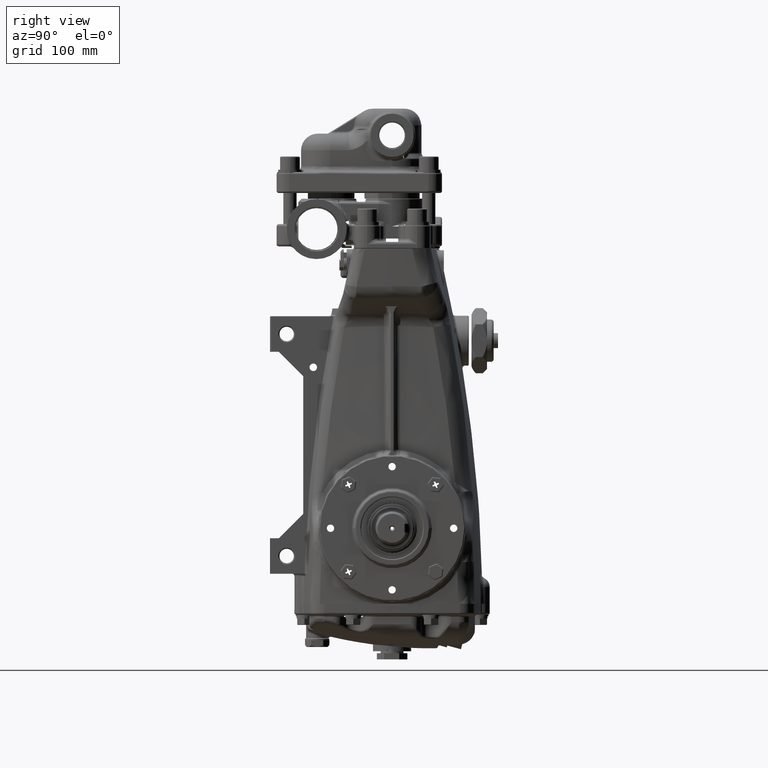
[diagram: clean part render]
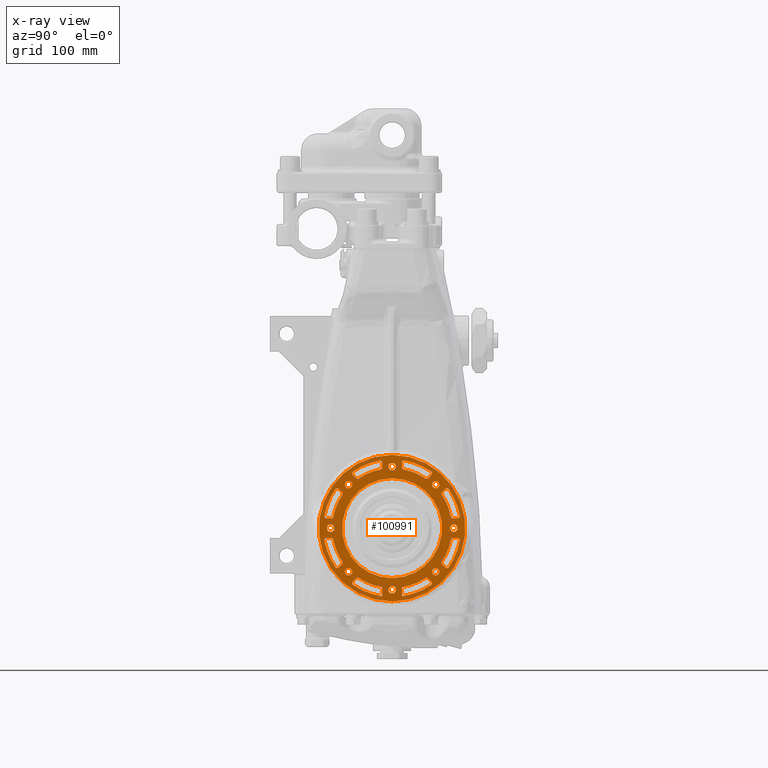
[diagram: x-ray — body ghosted, one internal face saturated and labeled with its STEP entity id]
A machine part, right view, then the same camera in x-ray: the body is ghosted and one INTERNAL B-rep face — a face not visible from any outside direction — is saturated and labeled: STEP entity #100991.
In plain terms, the highlighted planar face has unit normal (1, 0, -0).
Its self-contained STEP definition (entity closure, byte-faithful):
#22 = CIRCLE ( 'NONE', #50414, 0.1308464566929133932 ) ;
#222 = CARTESIAN_POINT ( 'NONE',  ( 4.448818897637796255, 0.000000000000000000, 0.000000000000000000 ) ) ;
#254 = CARTESIAN_POINT ( 'NONE',  ( 4.448818897637796255, 0.3543307086614174151, -2.096248742043171021 ) ) ;
#259 = CARTESIAN_POINT ( 'NONE',  ( 4.448818897637796255, 0.000000000000000000, 0.000000000000000000 ) ) ;
#300 = EDGE_CURVE ( 'NONE', #72708, #111078, #25360, .T. ) ;
#398 = EDGE_CURVE ( 'NONE', #30801, #101054, #72153, .T. ) ;
#548 = DIRECTION ( 'NONE',  ( 0.000000000000000000, -0.000000000000000000, -1.000000000000000000 ) ) ;
#568 = LINE ( 'NONE', #1683, #33389 ) ;
#737 = CARTESIAN_POINT ( 'NONE',  ( 4.448818897637796255, -1.391470569947490077, 1.892569863701754951 ) ) ;
#879 = CIRCLE ( 'NONE', #38666, 0.07874015748031502893 ) ;
#1100 = DIRECTION ( 'NONE',  ( 0.000000000000000000, -3.469446951953617344E-15, -1.000000000000000000 ) ) ;
#1653 = LINE ( 'NONE', #70302, #103339 ) ;
#1678 = EDGE_CURVE ( 'NONE', #45480, #70472, #83028, .T. ) ;
#1683 = CARTESIAN_POINT ( 'NONE',  ( 4.448818897637796255, 1.958276449577628586, -1.457177155823364378 ) ) ;
#2074 = VECTOR ( 'NONE', #14054, 39.37007874015748143 ) ;
#2166 = DIRECTION ( 'NONE',  ( 1.000000000000000000, -0.000000000000000000, 9.899117423955728400E-17 ) ) ;
#2251 = DIRECTION ( 'NONE',  ( 0.000000000000000000, 0.000000000000000000, -1.000000000000000000 ) ) ;
#2351 = EDGE_CURVE ( 'NONE', #4400, #22399, #20309, .T. ) ;
#2377 = DIRECTION ( 'NONE',  ( -1.000000000000000000, -0.000000000000000000, -9.899117423955728400E-17 ) ) ;
#2432 = ORIENTED_EDGE ( 'NONE', *, *, #60791, .T. ) ;
#2503 = CARTESIAN_POINT ( 'NONE',  ( 4.448818897637796255, 1.948247563007781569, -1.335792870641463015 ) ) ;
#2641 = CARTESIAN_POINT ( 'NONE',  ( 4.448818897637796255, 0.000000000000000000, -2.185039370078739829 ) ) ;
#2683 = DIRECTION ( 'NONE',  ( 0.000000000000000000, -0.7071067811865479058, -0.7071067811865470176 ) ) ;
#2788 = AXIS2_PLACEMENT_3D ( 'NONE', #109804, #32726, #91778 ) ;
#2866 = ORIENTED_EDGE ( 'NONE', *, *, #15502, .T. ) ;
#2986 = CARTESIAN_POINT ( 'NONE',  ( 4.448818897637796255, 1.602406943687490315E-17, 2.054192913385827435 ) ) ;
#3005 = DIRECTION ( 'NONE',  ( 0.000000000000000000, 0.000000000000000000, 1.000000000000000000 ) ) ;
#3033 = DIRECTION ( 'NONE',  ( -1.000000000000000000, -0.000000000000000000, -9.899117423955728400E-17 ) ) ;
#3206 = DIRECTION ( 'NONE',  ( -1.000000000000000000, -0.000000000000000000, 2.542649619626401295E-33 ) ) ;
#3435 = EDGE_CURVE ( 'NONE', #39134, #79244, #63535, .T. ) ;
#3472 = CARTESIAN_POINT ( 'NONE',  ( 4.448818897637796255, 1.545056155742267290, -1.545056155742250636 ) ) ;
#3484 = EDGE_CURVE ( 'NONE', #61542, #14777, #13255, .T. ) ;
#3537 = VERTEX_POINT ( 'NONE', #50053 ) ;
#3691 = CIRCLE ( 'NONE', #77282, 0.07874015748031495954 ) ;
#3778 = ORIENTED_EDGE ( 'NONE', *, *, #68406, .T. ) ;
#3897 = VERTEX_POINT ( 'NONE', #22387 ) ;
#3947 = LINE ( 'NONE', #23053, #2074 ) ;
#3995 = EDGE_LOOP ( 'NONE', ( #15032, #71739 ) ) ;
#4015 = CIRCLE ( 'NONE', #109915, 0.07874015748031495954 ) ;
#4055 = VERTEX_POINT ( 'NONE', #16690 ) ;
#4100 = EDGE_CURVE ( 'NONE', #103751, #20398, #95924, .T. ) ;
#4122 = EDGE_CURVE ( 'NONE', #86595, #90979, #51153, .T. ) ;
#4193 = DIRECTION ( 'NONE',  ( 0.000000000000000000, -0.7071067811865474617, 0.7071067811865474617 ) ) ;
#4277 = EDGE_CURVE ( 'NONE', #71914, #11930, #4492, .T. ) ;
#4278 = ORIENTED_EDGE ( 'NONE', *, *, #29696, .T. ) ;
#4400 = VERTEX_POINT ( 'NONE', #22792 ) ;
#4474 = VERTEX_POINT ( 'NONE', #737 ) ;
#4492 = CIRCLE ( 'NONE', #42219, 0.1308464566929133932 ) ;
#4821 = EDGE_CURVE ( 'NONE', #80277, #91612, #72813, .T. ) ;
#5049 = VERTEX_POINT ( 'NONE', #38836 ) ;
#5074 = EDGE_CURVE ( 'NONE', #50336, #46500, #11839, .T. ) ;
#5205 = VERTEX_POINT ( 'NONE', #58497 ) ;
#5354 = CARTESIAN_POINT ( 'NONE',  ( 4.448818897637796255, -0.4330708661417322913, 2.322167260324193627 ) ) ;
#5775 = CARTESIAN_POINT ( 'NONE',  ( 4.448818897637796255, -1.545056155742268178, -1.545056155742250192 ) ) ;
#5807 = CARTESIAN_POINT ( 'NONE',  ( 4.448818897637796255, 1.779153478240682373, 1.278054184486431710 ) ) ;
#5912 = DIRECTION ( 'NONE',  ( -1.000000000000000000, -0.000000000000000000, 2.542649619626401295E-33 ) ) ;
#6119 = CARTESIAN_POINT ( 'NONE',  ( 4.448818897637796255, 1.278054184486443701, -1.779153478240673492 ) ) ;
#6153 = FACE_BOUND ( 'NONE', #75751, .T. ) ;
#6196 = DIRECTION ( 'NONE',  ( -1.000000000000000000, -0.000000000000000000, -9.899117423955728400E-17 ) ) ;
#6326 = DIRECTION ( 'NONE',  ( -1.000000000000000000, -0.000000000000000000, -9.899117423955728400E-17 ) ) ;
#6684 = CARTESIAN_POINT ( 'NONE',  ( 4.448818897637796255, -1.178720182138238926, 1.769301492634332673 ) ) ;
#6708 = FACE_BOUND ( 'NONE', #67130, .T. ) ;
#6824 = DIRECTION ( 'NONE',  ( 0.000000000000000000, 0.000000000000000000, -1.000000000000000000 ) ) ;
#6867 = ORIENTED_EDGE ( 'NONE', *, *, #109543, .T. ) ;
#7244 = EDGE_LOOP ( 'NONE', ( #88899, #28197 ) ) ;
#7720 = ORIENTED_EDGE ( 'NONE', *, *, #39078, .T. ) ;
#7861 = VERTEX_POINT ( 'NONE', #52909 ) ;
#7881 = VERTEX_POINT ( 'NONE', #60785 ) ;
#7892 = AXIS2_PLACEMENT_3D ( 'NONE', #16629, #101562, #50945 ) ;
#8014 = CARTESIAN_POINT ( 'NONE',  ( 4.448818897637796255, -0.3543307086614173040, 2.322167260324193627 ) ) ;
#8186 = ORIENTED_EDGE ( 'NONE', *, *, #26534, .T. ) ;
#8421 = EDGE_CURVE ( 'NONE', #84987, #95950, #15020, .T. ) ;
#8455 = CIRCLE ( 'NONE', #40799, 0.1308464566929133932 ) ;
#8673 = DIRECTION ( 'NONE',  ( -1.000000000000000000, -0.000000000000000000, 2.542649619626401295E-33 ) ) ;
#8712 = AXIS2_PLACEMENT_3D ( 'NONE', #5775, #6326, #13114 ) ;
#8793 = DIRECTION ( 'NONE',  ( -1.000000000000000000, -0.000000000000000000, 2.542649619626401295E-33 ) ) ;
#9143 = CIRCLE ( 'NONE', #23532, 0.07874015748031502893 ) ;
#9306 = CARTESIAN_POINT ( 'NONE',  ( 4.448818897637796255, 1.178720182138251360, 1.769301492634324235 ) ) ;
#9524 = CIRCLE ( 'NONE', #56249, 0.07874015748031502893 ) ;
#9595 = CARTESIAN_POINT ( 'NONE',  ( 4.448818897637796255, 1.834831177546710101, 1.222376485180404426 ) ) ;
#9620 = DIRECTION ( 'NONE',  ( 0.000000000000000000, -0.7071067811865513475, 0.7071067811865435759 ) ) ;
#9736 = AXIS2_PLACEMENT_3D ( 'NONE', #22044, #73199, #29385 ) ;
#9996 = DIRECTION ( 'NONE',  ( 0.000000000000000000, 0.000000000000000000, 1.000000000000000000 ) ) ;
#10355 = ORIENTED_EDGE ( 'NONE', *, *, #61594, .T. ) ;
#10425 = CARTESIAN_POINT ( 'NONE',  ( 4.448818897637796255, 0.000000000000000000, 0.000000000000000000 ) ) ;
#10845 = CIRCLE ( 'NONE', #70062, 0.07874015748031502893 ) ;
#11140 = ORIENTED_EDGE ( 'NONE', *, *, #96174, .T. ) ;
#11198 = AXIS2_PLACEMENT_3D ( 'NONE', #44823, #95418, #70118 ) ;
#11772 = CIRCLE ( 'NONE', #26124, 0.1308464566929133932 ) ;
#11839 = CIRCLE ( 'NONE', #105177, 2.440944881889763884 ) ;
#11930 = VERTEX_POINT ( 'NONE', #105440 ) ;
#12153 = CARTESIAN_POINT ( 'NONE',  ( 4.448818897637796255, 1.391470569947510727, -1.892569863701739408 ) ) ;
#12303 = ORIENTED_EDGE ( 'NONE', *, *, #42707, .T. ) ;
#12312 = DIRECTION ( 'NONE',  ( 0.000000000000000000, 0.000000000000000000, 1.000000000000000000 ) ) ;
#12443 = DIRECTION ( 'NONE',  ( 0.000000000000000000, 0.000000000000000000, 1.000000000000000000 ) ) ;
#12756 = EDGE_CURVE ( 'NONE', #79244, #5205, #1653, .T. ) ;
#12803 = DIRECTION ( 'NONE',  ( 0.000000000000000000, 8.673617379884028570E-16, -1.000000000000000000 ) ) ;
#12891 = AXIS2_PLACEMENT_3D ( 'NONE', #100083, #107436, #82622 ) ;
#13114 = DIRECTION ( 'NONE',  ( 0.000000000000000000, 0.000000000000000000, 1.000000000000000000 ) ) ;
#13255 = CIRCLE ( 'NONE', #65268, 0.1308464566929133932 ) ;
#13730 = EDGE_CURVE ( 'NONE', #53164, #99906, #45826, .T. ) ;
#13899 = DIRECTION ( 'NONE',  ( 0.000000000000000000, 0.000000000000000000, 1.000000000000000000 ) ) ;
#14052 = CARTESIAN_POINT ( 'NONE',  ( 4.448818897637796255, 1.545056155742267290, -1.414209699049337354 ) ) ;
#14054 = DIRECTION ( 'NONE',  ( -0.000000000000000000, -1.000000000000000000, -2.142009898075822845E-16 ) ) ;
#14311 = VERTEX_POINT ( 'NONE', #60897 ) ;
#14451 = CIRCLE ( 'NONE', #73675, 0.1308464566929133932 ) ;
#14487 = CIRCLE ( 'NONE', #86278, 2.440944881889764329 ) ;
#14588 = CARTESIAN_POINT ( 'NONE',  ( 4.448818897637796255, 1.892569863701749178, 1.391470569947498737 ) ) ;
#14606 = CARTESIAN_POINT ( 'NONE',  ( 4.448818897637796255, -1.948247563007772021, -1.335792870641476782 ) ) ;
#14777 = VERTEX_POINT ( 'NONE', #45013 ) ;
#14801 = CIRCLE ( 'NONE', #90159, 0.1308464566929133932 ) ;
#14856 = CIRCLE ( 'NONE', #38136, 0.07874015748031495954 ) ;
#14949 = VERTEX_POINT ( 'NONE', #58987 ) ;
#14962 = CARTESIAN_POINT ( 'NONE',  ( 4.448818897637796255, 0.3543307086614173040, 2.096248742043171021 ) ) ;
#14992 = AXIS2_PLACEMENT_3D ( 'NONE', #58218, #76169, #66092 ) ;
#15020 = LINE ( 'NONE', #75701, #89888 ) ;
#15032 = ORIENTED_EDGE ( 'NONE', *, *, #3484, .T. ) ;
#15158 = FACE_BOUND ( 'NONE', #7244, .T. ) ;
#15208 = AXIS2_PLACEMENT_3D ( 'NONE', #10425, #28403, #95303 ) ;
#15502 = EDGE_CURVE ( 'NONE', #89564, #99513, #33456, .T. ) ;
#15588 = CIRCLE ( 'NONE', #92786, 0.07874015748031495954 ) ;
#15730 = ORIENTED_EDGE ( 'NONE', *, *, #398, .T. ) ;
#15759 = CIRCLE ( 'NONE', #40878, 0.07874015748031495954 ) ;
#16360 = EDGE_CURVE ( 'NONE', #97216, #100788, #15588, .T. ) ;
#16484 = AXIS2_PLACEMENT_3D ( 'NONE', #14606, #56246, #39904 ) ;
#16587 = CARTESIAN_POINT ( 'NONE',  ( 4.448818897637796255, -2.185039370078740273, 0.1308464566929133932 ) ) ;
#16629 = CARTESIAN_POINT ( 'NONE',  ( 4.448818897637796255, -1.948247563007768690, 1.335792870641482999 ) ) ;
#16690 = CARTESIAN_POINT ( 'NONE',  ( 4.448818897637796255, -1.779153478240674602, 1.278054184486443923 ) ) ;
#16852 = EDGE_CURVE ( 'NONE', #107859, #65405, #101879, .T. ) ;
#16862 = DIRECTION ( 'NONE',  ( -1.000000000000000000, -0.000000000000000000, 2.542649619626401295E-33 ) ) ;
#17994 = CARTESIAN_POINT ( 'NONE',  ( 4.448818897637796255, -0.4176040494938132452, 2.084566117316610789 ) ) ;
#18731 = CARTESIAN_POINT ( 'NONE',  ( 4.448818897637796255, -0.3543307086614173040, -2.415090405207086288 ) ) ;
#18932 = EDGE_LOOP ( 'NONE', ( #36858, #111335, #101764, #8186, #29584, #51919, #73131, #103792 ) ) ;
#19060 = CARTESIAN_POINT ( 'NONE',  ( 4.448818897637796255, 0.000000000000000000, -2.185039370078739829 ) ) ;
#19080 = EDGE_CURVE ( 'NONE', #5049, #59575, #100416, .T. ) ;
#19140 = EDGE_CURVE ( 'NONE', #85791, #4055, #21031, .T. ) ;
#19175 = CARTESIAN_POINT ( 'NONE',  ( 4.448818897637796255, 0.000000000000000000, -4.975950889780015573E-33 ) ) ;
#19302 = CIRCLE ( 'NONE', #71409, 0.07874015748031502893 ) ;
#19472 = LINE ( 'NONE', #53215, #22253 ) ;
#20309 = CIRCLE ( 'NONE', #63418, 2.598425196850393970 ) ;
#20398 = VERTEX_POINT ( 'NONE', #12153 ) ;
#20528 = LINE ( 'NONE', #62131, #63492 ) ;
#21005 = AXIS2_PLACEMENT_3D ( 'NONE', #109095, #58466, #92741 ) ;
#21031 = LINE ( 'NONE', #90144, #84173 ) ;
#21223 = CIRCLE ( 'NONE', #84012, 0.07874015748031489015 ) ;
#21251 = DIRECTION ( 'NONE',  ( -1.000000000000000000, -0.000000000000000000, -9.899117423955728400E-17 ) ) ;
#21279 = ORIENTED_EDGE ( 'NONE', *, *, #95452, .T. ) ;
#21708 = EDGE_LOOP ( 'NONE', ( #2866, #29020 ) ) ;
#22044 = CARTESIAN_POINT ( 'NONE',  ( 4.448818897637796255, 0.000000000000000000, -4.975950889780015573E-33 ) ) ;
#22253 = VECTOR ( 'NONE', #70068, 39.37007874015748143 ) ;
#22300 = CARTESIAN_POINT ( 'NONE',  ( 4.448818897637796255, -2.322167260324193627, 0.3543307086614186918 ) ) ;
#22387 = CARTESIAN_POINT ( 'NONE',  ( 4.448818897637796255, 1.278054184486436373, 1.779153478240679265 ) ) ;
#22399 = VERTEX_POINT ( 'NONE', #109679 ) ;
#22738 = CARTESIAN_POINT ( 'NONE',  ( 4.448818897637796255, -2.161772269809818070, -0.3543307086614166379 ) ) ;
#22788 = CIRCLE ( 'NONE', #60518, 0.07874015748031502893 ) ;
#22792 = CARTESIAN_POINT ( 'NONE',  ( 4.448818897637796255, -2.168196436624624024, -1.432039704699310967 ) ) ;
#23053 = CARTESIAN_POINT ( 'NONE',  ( 4.448818897637796255, 2.415090405207086732, 0.3543307086614186918 ) ) ;
#23254 = EDGE_CURVE ( 'NONE', #20398, #5049, #879, .T. ) ;
#23532 = AXIS2_PLACEMENT_3D ( 'NONE', #36483, #16862, #70807 ) ;
#23536 = AXIS2_PLACEMENT_3D ( 'NONE', #23660, #91668, #83770 ) ;
#23595 = FACE_BOUND ( 'NONE', #75952, .T. ) ;
#23660 = CARTESIAN_POINT ( 'NONE',  ( 4.448818897637796255, 1.222376485180408867, 1.834831177546706549 ) ) ;
#23938 = ORIENTED_EDGE ( 'NONE', *, *, #41258, .T. ) ;
#24029 = AXIS2_PLACEMENT_3D ( 'NONE', #107456, #37715, #39923 ) ;
#24318 = CARTESIAN_POINT ( 'NONE',  ( 4.448818897637796255, 0.000000000000000000, -2.054192913385826103 ) ) ;
#24476 = ORIENTED_EDGE ( 'NONE', *, *, #103541, .T. ) ;
#24709 = FACE_BOUND ( 'NONE', #37203, .T. ) ;
#24971 = DIRECTION ( 'NONE',  ( -1.000000000000000000, -0.000000000000000000, 2.542649619626401295E-33 ) ) ;
#25141 = AXIS2_PLACEMENT_3D ( 'NONE', #109512, #83586, #91492 ) ;
#25244 = ORIENTED_EDGE ( 'NONE', *, *, #64166, .T. ) ;
#25360 = CIRCLE ( 'NONE', #39698, 0.1308464566929133932 ) ;
#25580 = CARTESIAN_POINT ( 'NONE',  ( 4.448818897637796255, -2.013189148441364651, -1.380319299662859267 ) ) ;
#25604 = DIRECTION ( 'NONE',  ( 0.000000000000000000, 0.000000000000000000, -1.000000000000000000 ) ) ;
#25723 = AXIS2_PLACEMENT_3D ( 'NONE', #101791, #59051, #93316 ) ;
#26006 = ORIENTED_EDGE ( 'NONE', *, *, #86822, .T. ) ;
#26114 = DIRECTION ( 'NONE',  ( -1.000000000000000000, -0.000000000000000000, 2.542649619626401295E-33 ) ) ;
#26124 = AXIS2_PLACEMENT_3D ( 'NONE', #35579, #44608, #103666 ) ;
#26146 = EDGE_CURVE ( 'NONE', #76410, #86595, #35605, .T. ) ;
#26534 = EDGE_CURVE ( 'NONE', #46500, #85791, #83232, .T. ) ;
#26572 = VERTEX_POINT ( 'NONE', #254 ) ;
#27198 = CARTESIAN_POINT ( 'NONE',  ( 4.448818897637796255, 0.000000000000000000, 2.185039370078740717 ) ) ;
#27226 = EDGE_CURVE ( 'NONE', #22399, #4400, #106750, .T. ) ;
#27261 = DIRECTION ( 'NONE',  ( 0.000000000000000000, 0.000000000000000000, 1.000000000000000000 ) ) ;
#27276 = CARTESIAN_POINT ( 'NONE',  ( 4.448818897637796255, -2.096248742043171021, -0.3543307086614166379 ) ) ;
#27443 = AXIS2_PLACEMENT_3D ( 'NONE', #73892, #24971, #32280 ) ;
#27449 = EDGE_CURVE ( 'NONE', #87891, #14311, #43343, .T. ) ;
#27520 = CIRCLE ( 'NONE', #14992, 2.440944881889763884 ) ;
#27823 = DIRECTION ( 'NONE',  ( 0.000000000000000000, 0.000000000000000000, 1.000000000000000000 ) ) ;
#27912 = CARTESIAN_POINT ( 'NONE',  ( 4.448818897637796255, -1.222376485180395989, 1.834831177546715653 ) ) ;
#27940 = CARTESIAN_POINT ( 'NONE',  ( 4.448818897637796255, -2.322167260324193183, -0.3543307086614165824 ) ) ;
#28197 = ORIENTED_EDGE ( 'NONE', *, *, #97765, .T. ) ;
#28403 = DIRECTION ( 'NONE',  ( 1.000000000000000000, -0.000000000000000000, 9.899117423955728400E-17 ) ) ;
#28993 = AXIS2_PLACEMENT_3D ( 'NONE', #45783, #80060, #3005 ) ;
#29020 = ORIENTED_EDGE ( 'NONE', *, *, #80366, .T. ) ;
#29033 = CARTESIAN_POINT ( 'NONE',  ( 4.448818897637796255, 2.185039370078740273, 0.1308464566929133932 ) ) ;
#29173 = CIRCLE ( 'NONE', #11198, 0.1308464566929133932 ) ;
#29235 = EDGE_CURVE ( 'NONE', #14777, #61542, #11772, .T. ) ;
#29253 = CIRCLE ( 'NONE', #92059, 0.07874015748031502893 ) ;
#29385 = DIRECTION ( 'NONE',  ( 0.000000000000000000, 0.000000000000000000, -1.000000000000000000 ) ) ;
#29584 = ORIENTED_EDGE ( 'NONE', *, *, #19140, .T. ) ;
#29696 = EDGE_CURVE ( 'NONE', #84690, #56238, #568, .T. ) ;
#30442 = CARTESIAN_POINT ( 'NONE',  ( 4.448818897637796255, 1.779153478240687036, -1.278054184486424827 ) ) ;
#30715 = DIRECTION ( 'NONE',  ( 0.000000000000000000, 0.000000000000000000, 1.000000000000000000 ) ) ;
#30801 = VERTEX_POINT ( 'NONE', #83148 ) ;
#31241 = VERTEX_POINT ( 'NONE', #35581 ) ;
#31558 = ORIENTED_EDGE ( 'NONE', *, *, #55488, .T. ) ;
#31574 = ORIENTED_EDGE ( 'NONE', *, *, #12756, .T. ) ;
#31671 = DIRECTION ( 'NONE',  ( 0.000000000000000000, 0.000000000000000000, 1.000000000000000000 ) ) ;
#31751 = ORIENTED_EDGE ( 'NONE', *, *, #97997, .T. ) ;
#31771 = VERTEX_POINT ( 'NONE', #14052 ) ;
#32087 = EDGE_CURVE ( 'NONE', #100094, #3897, #38116, .T. ) ;
#32259 = LINE ( 'NONE', #58135, #38886 ) ;
#32280 = DIRECTION ( 'NONE',  ( 0.000000000000000000, 0.000000000000000000, -1.000000000000000000 ) ) ;
#32503 = DIRECTION ( 'NONE',  ( -1.000000000000000000, -0.000000000000000000, -9.899117423955728400E-17 ) ) ;
#32532 = CARTESIAN_POINT ( 'NONE',  ( 4.448818897637796255, -2.161772269809818070, -0.4330708661417315697 ) ) ;
#32726 = DIRECTION ( 'NONE',  ( 1.000000000000000000, -0.000000000000000000, 9.899117423955728400E-17 ) ) ;
#32934 = DIRECTION ( 'NONE',  ( 1.000000000000000000, -0.000000000000000000, 9.899117423955728400E-17 ) ) ;
#33039 = ORIENTED_EDGE ( 'NONE', *, *, #72108, .T. ) ;
#33098 = FACE_BOUND ( 'NONE', #61596, .T. ) ;
#33333 = DIRECTION ( 'NONE',  ( 0.000000000000000000, -3.469446951953611428E-15, -1.000000000000000000 ) ) ;
#33389 = VECTOR ( 'NONE', #9620, 39.37007874015748854 ) ;
#33456 = CIRCLE ( 'NONE', #42459, 1.771653543307086798 ) ;
#33955 = CARTESIAN_POINT ( 'NONE',  ( 4.448818897637796255, 1.335792870641483443, -1.948247563007767136 ) ) ;
#34521 = CARTESIAN_POINT ( 'NONE',  ( 4.448818897637796255, 0.000000000000000000, 0.000000000000000000 ) ) ;
#34546 = DIRECTION ( 'NONE',  ( 1.000000000000000000, -0.000000000000000000, 9.899117423955728400E-17 ) ) ;
#34566 = EDGE_CURVE ( 'NONE', #91612, #97334, #21223, .T. ) ;
#34614 = DIRECTION ( 'NONE',  ( 0.000000000000000000, -6.938893903907222856E-15, -1.000000000000000000 ) ) ;
#34749 = CIRCLE ( 'NONE', #74251, 0.07874015748031502893 ) ;
#35134 = DIRECTION ( 'NONE',  ( -1.000000000000000000, -0.000000000000000000, 2.542649619626401295E-33 ) ) ;
#35259 = DIRECTION ( 'NONE',  ( 1.000000000000000000, -0.000000000000000000, 9.899117423955728400E-17 ) ) ;
#35579 = CARTESIAN_POINT ( 'NONE',  ( 4.448818897637796255, -1.545056155742266846, 1.545056155742252191 ) ) ;
#35581 = CARTESIAN_POINT ( 'NONE',  ( 4.448818897637796255, -0.3543307086614173040, -2.096248742043170576 ) ) ;
#35605 = CIRCLE ( 'NONE', #48179, 2.125984251968504157 ) ;
#35686 = VERTEX_POINT ( 'NONE', #14588 ) ;
#35779 = ORIENTED_EDGE ( 'NONE', *, *, #104853, .T. ) ;
#36246 = DIRECTION ( 'NONE',  ( 0.000000000000000000, 0.7071067811865465735, 0.7071067811865483499 ) ) ;
#36365 = AXIS2_PLACEMENT_3D ( 'NONE', #44400, #2166, #71928 ) ;
#36483 = CARTESIAN_POINT ( 'NONE',  ( 4.448818897637796255, -1.335792870641462793, 1.948247563007782457 ) ) ;
#36733 = EDGE_CURVE ( 'NONE', #76577, #89446, #43105, .T. ) ;
#36858 = ORIENTED_EDGE ( 'NONE', *, *, #8421, .T. ) ;
#37203 = EDGE_LOOP ( 'NONE', ( #101227, #75758, #111330, #103523, #11140, #72026, #92561, #7720 ) ) ;
#37231 = DIRECTION ( 'NONE',  ( -1.000000000000000000, -0.000000000000000000, -9.899117423955728400E-17 ) ) ;
#37330 = EDGE_CURVE ( 'NONE', #75911, #80277, #3691, .T. ) ;
#37444 = DIRECTION ( 'NONE',  ( -1.000000000000000000, -0.000000000000000000, -9.899117423955728400E-17 ) ) ;
#37644 = EDGE_CURVE ( 'NONE', #31771, #70455, #14451, .T. ) ;
#37715 = DIRECTION ( 'NONE',  ( -1.000000000000000000, -0.000000000000000000, 2.542649619626401295E-33 ) ) ;
#37972 = LINE ( 'NONE', #64940, #58440 ) ;
#38104 = CARTESIAN_POINT ( 'NONE',  ( 4.448818897637796255, -1.545056155742266846, 1.675902612435165695 ) ) ;
#38116 = LINE ( 'NONE', #105642, #49635 ) ;
#38136 = AXIS2_PLACEMENT_3D ( 'NONE', #102597, #8673, #100929 ) ;
#38225 = VERTEX_POINT ( 'NONE', #45844 ) ;
#38666 = AXIS2_PLACEMENT_3D ( 'NONE', #33955, #26114, #60415 ) ;
#38836 = CARTESIAN_POINT ( 'NONE',  ( 4.448818897637796255, 1.380319299662866372, -2.013189148441359322 ) ) ;
#38886 = VECTOR ( 'NONE', #4193, 39.37007874015748854 ) ;
#39078 = EDGE_CURVE ( 'NONE', #110285, #108066, #61074, .T. ) ;
#39100 = ORIENTED_EDGE ( 'NONE', *, *, #80920, .T. ) ;
#39134 = VERTEX_POINT ( 'NONE', #54440 ) ;
#39195 = ORIENTED_EDGE ( 'NONE', *, *, #108369, .T. ) ;
#39302 = CARTESIAN_POINT ( 'NONE',  ( 4.448818897637796255, 1.222376485180416417, -1.834831177546701220 ) ) ;
#39320 = EDGE_CURVE ( 'NONE', #14311, #76410, #10845, .T. ) ;
#39587 = EDGE_CURVE ( 'NONE', #65405, #107859, #73734, .T. ) ;
#39615 = DIRECTION ( 'NONE',  ( -1.000000000000000000, -0.000000000000000000, -9.899117423955728400E-17 ) ) ;
#39698 = AXIS2_PLACEMENT_3D ( 'NONE', #69979, #3033, #27261 ) ;
#39904 = DIRECTION ( 'NONE',  ( 0.000000000000000000, 0.000000000000000000, -1.000000000000000000 ) ) ;
#39923 = DIRECTION ( 'NONE',  ( 0.000000000000000000, -3.469446951953617344E-15, -1.000000000000000000 ) ) ;
#40413 = AXIS2_PLACEMENT_3D ( 'NONE', #62978, #46663, #53986 ) ;
#40424 = DIRECTION ( 'NONE',  ( -1.000000000000000000, -0.000000000000000000, 2.542649619626401295E-33 ) ) ;
#40431 = ORIENTED_EDGE ( 'NONE', *, *, #108403, .T. ) ;
#40547 = EDGE_CURVE ( 'NONE', #49883, #92537, #82793, .T. ) ;
#40799 = AXIS2_PLACEMENT_3D ( 'NONE', #85301, #32503, #51610 ) ;
#40878 = AXIS2_PLACEMENT_3D ( 'NONE', #32532, #40424, #57299 ) ;
#40974 = CIRCLE ( 'NONE', #21005, 2.125984251968503713 ) ;
#40999 = DIRECTION ( 'NONE',  ( -1.000000000000000000, -0.000000000000000000, 2.542649619626401295E-33 ) ) ;
#41010 = PLANE ( 'NONE',  #67695 ) ;
#41258 = EDGE_CURVE ( 'NONE', #38225, #61676, #74172, .T. ) ;
#41793 = DIRECTION ( 'NONE',  ( -1.000000000000000000, -0.000000000000000000, 2.542649619626401295E-33 ) ) ;
#42078 = DIRECTION ( 'NONE',  ( -1.000000000000000000, -0.000000000000000000, 2.542649619626401295E-33 ) ) ;
#42159 = VECTOR ( 'NONE', #548, 39.37007874015748143 ) ;
#42219 = AXIS2_PLACEMENT_3D ( 'NONE', #55994, #37444, #88042 ) ;
#42223 = DIRECTION ( 'NONE',  ( -1.000000000000000000, -0.000000000000000000, 2.542649619626401295E-33 ) ) ;
#42441 = AXIS2_PLACEMENT_3D ( 'NONE', #80257, #3206, #80812 ) ;
#42459 = AXIS2_PLACEMENT_3D ( 'NONE', #57599, #39615, #73890 ) ;
#42474 = CARTESIAN_POINT ( 'NONE',  ( 4.448818897637796255, -1.178720182138244033, -1.769301492634328232 ) ) ;
#42486 = DIRECTION ( 'NONE',  ( -1.000000000000000000, -0.000000000000000000, 2.542649619626401295E-33 ) ) ;
#42509 = DIRECTION ( 'NONE',  ( 0.000000000000000000, 0.7071067811865470176, 0.7071067811865479058 ) ) ;
#42707 = EDGE_CURVE ( 'NONE', #44591, #7861, #14801, .T. ) ;
#42749 = CARTESIAN_POINT ( 'NONE',  ( 4.448818897637796255, 2.399572835668333237, 0.4475065616797913037 ) ) ;
#43105 = CIRCLE ( 'NONE', #25141, 0.07874015748031495954 ) ;
#43343 = LINE ( 'NONE', #70872, #42159 ) ;
#44144 = EDGE_CURVE ( 'NONE', #56238, #7881, #34749, .T. ) ;
#44400 = CARTESIAN_POINT ( 'NONE',  ( 4.448818897637796255, 0.000000000000000000, 0.000000000000000000 ) ) ;
#44431 = CARTESIAN_POINT ( 'NONE',  ( 4.448818897637796255, -2.185039370078740273, 3.577780186915982985E-67 ) ) ;
#44591 = VERTEX_POINT ( 'NONE', #68419 ) ;
#44608 = DIRECTION ( 'NONE',  ( -1.000000000000000000, -0.000000000000000000, -9.899117423955728400E-17 ) ) ;
#44814 = EDGE_CURVE ( 'NONE', #54624, #87891, #79734, .T. ) ;
#44823 = CARTESIAN_POINT ( 'NONE',  ( 4.448818897637796255, 1.545056155742267290, -1.545056155742250636 ) ) ;
#45013 = CARTESIAN_POINT ( 'NONE',  ( 4.448818897637796255, -1.545056155742266846, 1.414209699049338909 ) ) ;
#45056 = VERTEX_POINT ( 'NONE', #100941 ) ;
#45189 = AXIS2_PLACEMENT_3D ( 'NONE', #81179, #74940, #31671 ) ;
#45480 = VERTEX_POINT ( 'NONE', #99876 ) ;
#45683 = EDGE_CURVE ( 'NONE', #7881, #97216, #90629, .T. ) ;
#45783 = CARTESIAN_POINT ( 'NONE',  ( 4.448818897637796255, 0.000000000000000000, 0.000000000000000000 ) ) ;
#45826 = LINE ( 'NONE', #27276, #58628 ) ;
#45844 = CARTESIAN_POINT ( 'NONE',  ( 4.448818897637796255, -1.545056155742268178, -1.414209699049336688 ) ) ;
#46500 = VERTEX_POINT ( 'NONE', #87141 ) ;
#46544 = CARTESIAN_POINT ( 'NONE',  ( 4.448818897637796255, 2.169649841009090648E-16, -1.771653543307086798 ) ) ;
#46569 = VERTEX_POINT ( 'NONE', #62437 ) ;
#46663 = DIRECTION ( 'NONE',  ( 1.000000000000000000, -0.000000000000000000, 9.899117423955728400E-17 ) ) ;
#46743 = VERTEX_POINT ( 'NONE', #9306 ) ;
#47020 = ORIENTED_EDGE ( 'NONE', *, *, #44144, .T. ) ;
#47110 = DIRECTION ( 'NONE',  ( 0.000000000000000000, 0.000000000000000000, 1.000000000000000000 ) ) ;
#47452 = ORIENTED_EDGE ( 'NONE', *, *, #89949, .T. ) ;
#47644 = EDGE_LOOP ( 'NONE', ( #59184, #99676 ) ) ;
#47922 = AXIS2_PLACEMENT_3D ( 'NONE', #259, #32934, #76776 ) ;
#48174 = CARTESIAN_POINT ( 'NONE',  ( 4.448818897637796255, 2.322167260324193183, -0.3543307086614165824 ) ) ;
#48179 = AXIS2_PLACEMENT_3D ( 'NONE', #68487, #35259, #9996 ) ;
#48242 = ORIENTED_EDGE ( 'NONE', *, *, #102874, .T. ) ;
#48341 = VERTEX_POINT ( 'NONE', #53622 ) ;
#48362 = CARTESIAN_POINT ( 'NONE',  ( 4.448818897637796255, 1.380319299662858157, 2.013189148441365983 ) ) ;
#48425 = CARTESIAN_POINT ( 'NONE',  ( 4.448818897637796255, 2.013189148441373977, -1.380319299662845056 ) ) ;
#48515 = AXIS2_PLACEMENT_3D ( 'NONE', #222, #34546, #27823 ) ;
#49451 = DIRECTION ( 'NONE',  ( 0.000000000000000000, 3.469446951953614189E-15, -1.000000000000000000 ) ) ;
#49463 = FACE_BOUND ( 'NONE', #90873, .T. ) ;
#49606 = CARTESIAN_POINT ( 'NONE',  ( 4.448818897637796255, 0.3543307086614173040, 2.161772269809818514 ) ) ;
#49635 = VECTOR ( 'NONE', #2683, 39.37007874015748854 ) ;
#49883 = VERTEX_POINT ( 'NONE', #25580 ) ;
#49984 = CARTESIAN_POINT ( 'NONE',  ( 4.448818897637796255, 0.000000000000000000, 1.771653543307086798 ) ) ;
#50053 = CARTESIAN_POINT ( 'NONE',  ( 4.448818897637796255, 0.3543307086614173040, 2.322167260324193627 ) ) ;
#50239 = CARTESIAN_POINT ( 'NONE',  ( 4.448818897637796255, 1.948247563007776906, 1.335792870641471231 ) ) ;
#50336 = VERTEX_POINT ( 'NONE', #88921 ) ;
#50350 = ORIENTED_EDGE ( 'NONE', *, *, #53512, .T. ) ;
#50414 = AXIS2_PLACEMENT_3D ( 'NONE', #2641, #79140, #52754 ) ;
#50423 = CIRCLE ( 'NONE', #23536, 0.07874015748031502893 ) ;
#50475 = VERTEX_POINT ( 'NONE', #48425 ) ;
#50945 = DIRECTION ( 'NONE',  ( 0.000000000000000000, 0.000000000000000000, -1.000000000000000000 ) ) ;
#51004 = DIRECTION ( 'NONE',  ( -1.000000000000000000, -0.000000000000000000, 2.542649619626401295E-33 ) ) ;
#51153 = CIRCLE ( 'NONE', #52925, 0.07874015748031502893 ) ;
#51182 = ORIENTED_EDGE ( 'NONE', *, *, #111064, .T. ) ;
#51247 = CARTESIAN_POINT ( 'NONE',  ( 4.448818897637796255, 2.161772269809818070, -0.3543307086614166379 ) ) ;
#51533 = AXIS2_PLACEMENT_3D ( 'NONE', #50239, #41793, #33333 ) ;
#51610 = DIRECTION ( 'NONE',  ( 0.000000000000000000, 0.000000000000000000, 1.000000000000000000 ) ) ;
#51642 = CARTESIAN_POINT ( 'NONE',  ( 4.448818897637796255, 2.415090405207086732, -0.3543307086614165824 ) ) ;
#51675 = DIRECTION ( 'NONE',  ( 0.000000000000000000, 0.000000000000000000, -1.000000000000000000 ) ) ;
#51919 = ORIENTED_EDGE ( 'NONE', *, *, #68100, .T. ) ;
#52035 = CARTESIAN_POINT ( 'NONE',  ( 4.448818897637796255, 0.3543307086614173040, -2.415090405207086288 ) ) ;
#52323 = DIRECTION ( 'NONE',  ( 0.000000000000000000, 1.734723475976805714E-15, -1.000000000000000000 ) ) ;
#52512 = DIRECTION ( 'NONE',  ( 0.000000000000000000, 0.000000000000000000, 1.000000000000000000 ) ) ;
#52591 = VECTOR ( 'NONE', #42509, 39.37007874015748854 ) ;
#52754 = DIRECTION ( 'NONE',  ( 0.000000000000000000, 0.000000000000000000, 1.000000000000000000 ) ) ;
#52909 = CARTESIAN_POINT ( 'NONE',  ( 4.448818897637796255, 1.545056155742267512, 1.675902612435164141 ) ) ;
#52925 = AXIS2_PLACEMENT_3D ( 'NONE', #27912, #51004, #77385 ) ;
#53033 = ORIENTED_EDGE ( 'NONE', *, *, #19080, .T. ) ;
#53164 = VERTEX_POINT ( 'NONE', #27940 ) ;
#53215 = CARTESIAN_POINT ( 'NONE',  ( 4.448818897637796255, -0.3543307086614173040, -2.415090405207086288 ) ) ;
#53411 = AXIS2_PLACEMENT_3D ( 'NONE', #27198, #95770, #52512 ) ;
#53480 = AXIS2_PLACEMENT_3D ( 'NONE', #66284, #101707, #57293 ) ;
#53512 = EDGE_CURVE ( 'NONE', #106941, #45480, #109422, .T. ) ;
#53622 = CARTESIAN_POINT ( 'NONE',  ( 4.448818897637796255, -1.769301492634319573, 1.178720182138258465 ) ) ;
#53813 = ORIENTED_EDGE ( 'NONE', *, *, #26146, .T. ) ;
#53986 = DIRECTION ( 'NONE',  ( 0.000000000000000000, 0.000000000000000000, 1.000000000000000000 ) ) ;
#54218 = ORIENTED_EDGE ( 'NONE', *, *, #73618, .T. ) ;
#54255 = ORIENTED_EDGE ( 'NONE', *, *, #57473, .T. ) ;
#54440 = CARTESIAN_POINT ( 'NONE',  ( 4.448818897637796255, -1.769301492634324013, -1.178720182138250916 ) ) ;
#54624 = VERTEX_POINT ( 'NONE', #55909 ) ;
#54993 = DIRECTION ( 'NONE',  ( -1.000000000000000000, -0.000000000000000000, 2.542649619626401295E-33 ) ) ;
#55392 = ORIENTED_EDGE ( 'NONE', *, *, #2351, .T. ) ;
#55488 = EDGE_CURVE ( 'NONE', #3897, #46743, #50423, .T. ) ;
#55737 = DIRECTION ( 'NONE',  ( 0.000000000000000000, 0.000000000000000000, 1.000000000000000000 ) ) ;
#55820 = CARTESIAN_POINT ( 'NONE',  ( 4.448818897637796255, -1.278054184486430822, -1.779153478240682373 ) ) ;
#55909 = CARTESIAN_POINT ( 'NONE',  ( 4.448818897637796255, -0.4475065616797899715, 2.399572835668333681 ) ) ;
#55994 = CARTESIAN_POINT ( 'NONE',  ( 4.448818897637796255, -2.185039370078740273, 3.577780186915982985E-67 ) ) ;
#56063 = ORIENTED_EDGE ( 'NONE', *, *, #39587, .T. ) ;
#56238 = VERTEX_POINT ( 'NONE', #30442 ) ;
#56246 = DIRECTION ( 'NONE',  ( -1.000000000000000000, -0.000000000000000000, 2.542649619626401295E-33 ) ) ;
#56249 = AXIS2_PLACEMENT_3D ( 'NONE', #39302, #73052, #98923 ) ;
#56306 = CIRCLE ( 'NONE', #92162, 0.1308464566929133932 ) ;
#56449 = ORIENTED_EDGE ( 'NONE', *, *, #107285, .T. ) ;
#57026 = EDGE_LOOP ( 'NONE', ( #23938, #80590 ) ) ;
#57207 = CIRCLE ( 'NONE', #8712, 0.1308464566929133932 ) ;
#57293 = DIRECTION ( 'NONE',  ( 0.000000000000000000, 0.000000000000000000, 1.000000000000000000 ) ) ;
#57299 = DIRECTION ( 'NONE',  ( 0.000000000000000000, 0.000000000000000000, -1.000000000000000000 ) ) ;
#57327 = FACE_BOUND ( 'NONE', #57026, .T. ) ;
#57358 = DIRECTION ( 'NONE',  ( -1.000000000000000000, -0.000000000000000000, 2.542649619626401295E-33 ) ) ;
#57473 = EDGE_CURVE ( 'NONE', #100788, #76577, #60631, .T. ) ;
#57599 = CARTESIAN_POINT ( 'NONE',  ( 4.448818897637796255, 0.000000000000000000, 0.000000000000000000 ) ) ;
#57735 = VECTOR ( 'NONE', #94901, 39.37007874015748143 ) ;
#57884 = FACE_BOUND ( 'NONE', #47644, .T. ) ;
#58135 = CARTESIAN_POINT ( 'NONE',  ( 4.448818897637796255, -1.231722053675362361, 1.732821347429627235 ) ) ;
#58218 = CARTESIAN_POINT ( 'NONE',  ( 4.448818897637796255, 0.000000000000000000, 0.000000000000000000 ) ) ;
#58219 = EDGE_CURVE ( 'NONE', #70455, #31771, #29173, .T. ) ;
#58440 = VECTOR ( 'NONE', #83432, 39.37007874015748143 ) ;
#58443 = FACE_BOUND ( 'NONE', #18932, .T. ) ;
#58466 = DIRECTION ( 'NONE',  ( 1.000000000000000000, -0.000000000000000000, 9.899117423955728400E-17 ) ) ;
#58497 = CARTESIAN_POINT ( 'NONE',  ( 4.448818897637796255, -1.892569863701744737, -1.391470569947503844 ) ) ;
#58628 = VECTOR ( 'NONE', #95296, 39.37007874015748143 ) ;
#58987 = CARTESIAN_POINT ( 'NONE',  ( 4.448818897637796255, 0.4176040494938132452, 2.084566117316610789 ) ) ;
#59051 = DIRECTION ( 'NONE',  ( -1.000000000000000000, -0.000000000000000000, -9.899117423955728400E-17 ) ) ;
#59090 = DIRECTION ( 'NONE',  ( -1.000000000000000000, -0.000000000000000000, 2.542649619626401295E-33 ) ) ;
#59184 = ORIENTED_EDGE ( 'NONE', *, *, #37644, .T. ) ;
#59427 = ORIENTED_EDGE ( 'NONE', *, *, #4122, .T. ) ;
#59428 = CIRCLE ( 'NONE', #68398, 0.1308464566929133932 ) ;
#59575 = VERTEX_POINT ( 'NONE', #52035 ) ;
#60187 = DIRECTION ( 'NONE',  ( 0.000000000000000000, 0.000000000000000000, 1.000000000000000000 ) ) ;
#60190 = EDGE_CURVE ( 'NONE', #95950, #50336, #4015, .T. ) ;
#60415 = DIRECTION ( 'NONE',  ( 0.000000000000000000, 0.000000000000000000, -1.000000000000000000 ) ) ;
#60462 = CARTESIAN_POINT ( 'NONE',  ( 4.448818897637796255, 2.161772269809818514, 0.4330708661417335681 ) ) ;
#60518 = AXIS2_PLACEMENT_3D ( 'NONE', #2503, #35134, #104326 ) ;
#60631 = LINE ( 'NONE', #51642, #57735 ) ;
#60785 = CARTESIAN_POINT ( 'NONE',  ( 4.448818897637796255, 1.769301492634331341, -1.178720182138239814 ) ) ;
#60791 = EDGE_CURVE ( 'NONE', #70472, #105991, #102122, .T. ) ;
#60897 = CARTESIAN_POINT ( 'NONE',  ( 4.448818897637796255, -0.3543307086614173040, 2.161772269809818514 ) ) ;
#60932 = AXIS2_PLACEMENT_3D ( 'NONE', #62096, #71656, #89072 ) ;
#61009 = DIRECTION ( 'NONE',  ( -1.000000000000000000, -0.000000000000000000, 2.542649619626401295E-33 ) ) ;
#61063 = DIRECTION ( 'NONE',  ( -1.000000000000000000, -0.000000000000000000, 2.542649619626401295E-33 ) ) ;
#61074 = CIRCLE ( 'NONE', #89808, 0.07874015748031495954 ) ;
#61316 = DIRECTION ( 'NONE',  ( -1.000000000000000000, -0.000000000000000000, 2.542649619626401295E-33 ) ) ;
#61542 = VERTEX_POINT ( 'NONE', #38104 ) ;
#61594 = EDGE_CURVE ( 'NONE', #101054, #100094, #101232, .T. ) ;
#61596 = EDGE_LOOP ( 'NONE', ( #50350, #80776, #2432, #24476, #6867, #54218 ) ) ;
#61676 = VERTEX_POINT ( 'NONE', #86336 ) ;
#61834 = ORIENTED_EDGE ( 'NONE', *, *, #16360, .T. ) ;
#62096 = CARTESIAN_POINT ( 'NONE',  ( 4.448818897637796255, 0.000000000000000000, 0.000000000000000000 ) ) ;
#62131 = CARTESIAN_POINT ( 'NONE',  ( 4.448818897637796255, 1.732821347429621683, 1.231722053675370576 ) ) ;
#62351 = ORIENTED_EDGE ( 'NONE', *, *, #4100, .T. ) ;
#62433 = DIRECTION ( 'NONE',  ( 0.000000000000000000, -0.7071067811865466846, -0.7071067811865483499 ) ) ;
#62437 = CARTESIAN_POINT ( 'NONE',  ( 4.448818897637796255, 1.602406943687490315E-17, -2.315885826771653111 ) ) ;
#62978 = CARTESIAN_POINT ( 'NONE',  ( 4.448818897637796255, 0.000000000000000000, 0.000000000000000000 ) ) ;
#63376 = ORIENTED_EDGE ( 'NONE', *, *, #300, .T. ) ;
#63418 = AXIS2_PLACEMENT_3D ( 'NONE', #19175, #78205, #2251 ) ;
#63492 = VECTOR ( 'NONE', #36246, 39.37007874015748854 ) ;
#63535 = CIRCLE ( 'NONE', #24029, 0.07874015748031489015 ) ;
#63551 = CARTESIAN_POINT ( 'NONE',  ( 4.448818897637796255, -2.084566117316610789, 0.4176040494938145775 ) ) ;
#63589 = VERTEX_POINT ( 'NONE', #103659 ) ;
#64052 = VERTEX_POINT ( 'NONE', #78481 ) ;
#64166 = EDGE_CURVE ( 'NONE', #59575, #26572, #37972, .T. ) ;
#64314 = CARTESIAN_POINT ( 'NONE',  ( 4.448818897637796255, 2.161772269809818514, 0.3543307086614185808 ) ) ;
#64716 = VERTEX_POINT ( 'NONE', #49606 ) ;
#64818 = ORIENTED_EDGE ( 'NONE', *, *, #99933, .T. ) ;
#64940 = CARTESIAN_POINT ( 'NONE',  ( 4.448818897637796255, 0.3543307086614173040, -2.415090405207086288 ) ) ;
#65268 = AXIS2_PLACEMENT_3D ( 'NONE', #74209, #106363, #12443 ) ;
#65405 = VERTEX_POINT ( 'NONE', #2986 ) ;
#65761 = DIRECTION ( 'NONE',  ( 2.542649619626400953E-33, 0.000000000000000000, 1.000000000000000000 ) ) ;
#65771 = VERTEX_POINT ( 'NONE', #24318 ) ;
#66043 = EDGE_LOOP ( 'NONE', ( #31574, #40431, #95395, #47452, #86290, #39100, #106238, #86979 ) ) ;
#66092 = DIRECTION ( 'NONE',  ( 0.000000000000000000, 0.000000000000000000, 1.000000000000000000 ) ) ;
#66259 = AXIS2_PLACEMENT_3D ( 'NONE', #101299, #42223, #6824 ) ;
#66283 = DIRECTION ( 'NONE',  ( 0.000000000000000000, 0.000000000000000000, -1.000000000000000000 ) ) ;
#66284 = CARTESIAN_POINT ( 'NONE',  ( 4.448818897637796255, 0.000000000000000000, 0.000000000000000000 ) ) ;
#66316 = FACE_BOUND ( 'NONE', #3995, .T. ) ;
#66865 = CARTESIAN_POINT ( 'NONE',  ( 4.448818897637796255, 0.000000000000000000, -2.598425196850393970 ) ) ;
#66899 = CARTESIAN_POINT ( 'NONE',  ( 4.448818897637796255, 1.834831177546714320, -1.222376485180397099 ) ) ;
#67130 = EDGE_LOOP ( 'NONE', ( #63376, #48242 ) ) ;
#67695 = AXIS2_PLACEMENT_3D ( 'NONE', #66865, #92723, #65761 ) ;
#67746 = DIRECTION ( 'NONE',  ( 0.000000000000000000, 0.000000000000000000, 1.000000000000000000 ) ) ;
#68100 = EDGE_CURVE ( 'NONE', #4055, #48341, #81992, .T. ) ;
#68216 = EDGE_CURVE ( 'NONE', #64052, #39134, #78396, .T. ) ;
#68398 = AXIS2_PLACEMENT_3D ( 'NONE', #19060, #89320, #12312 ) ;
#68406 = EDGE_CURVE ( 'NONE', #50475, #84690, #22788, .T. ) ;
#68419 = CARTESIAN_POINT ( 'NONE',  ( 4.448818897637796255, 1.545056155742267512, 1.414209699049337354 ) ) ;
#68485 = EDGE_LOOP ( 'NONE', ( #78896, #31558, #31751, #109975, #51182, #35779, #15730, #10355 ) ) ;
#68487 = CARTESIAN_POINT ( 'NONE',  ( 4.448818897637796255, 0.000000000000000000, 0.000000000000000000 ) ) ;
#68920 = CARTESIAN_POINT ( 'NONE',  ( 4.448818897637796255, -1.457177155823371262, -1.958276449577623035 ) ) ;
#69002 = EDGE_LOOP ( 'NONE', ( #64818, #86364, #56449, #75561, #93410, #102714, #53813, #59427 ) ) ;
#69979 = CARTESIAN_POINT ( 'NONE',  ( 4.448818897637796255, 2.185039370078740273, 3.577780186915982985E-67 ) ) ;
#70012 = CARTESIAN_POINT ( 'NONE',  ( 4.448818897637796255, -2.322167260324193183, -0.4330708661417315697 ) ) ;
#70062 = AXIS2_PLACEMENT_3D ( 'NONE', #73478, #54993, #12803 ) ;
#70068 = DIRECTION ( 'NONE',  ( 0.000000000000000000, -0.000000000000000000, -1.000000000000000000 ) ) ;
#70118 = DIRECTION ( 'NONE',  ( 0.000000000000000000, 0.000000000000000000, 1.000000000000000000 ) ) ;
#70302 = CARTESIAN_POINT ( 'NONE',  ( 4.448818897637796255, -1.958276449577618594, -1.457177155823377923 ) ) ;
#70455 = VERTEX_POINT ( 'NONE', #111246 ) ;
#70472 = VERTEX_POINT ( 'NONE', #85882 ) ;
#70807 = DIRECTION ( 'NONE',  ( 0.000000000000000000, 0.000000000000000000, -1.000000000000000000 ) ) ;
#70829 = AXIS2_PLACEMENT_3D ( 'NONE', #5354, #5912, #81281 ) ;
#70872 = CARTESIAN_POINT ( 'NONE',  ( 4.448818897637796255, -0.3543307086614173040, 2.096248742043171021 ) ) ;
#71244 = EDGE_CURVE ( 'NONE', #61676, #38225, #57207, .T. ) ;
#71409 = AXIS2_PLACEMENT_3D ( 'NONE', #84352, #59090, #52323 ) ;
#71421 = CARTESIAN_POINT ( 'NONE',  ( 4.448818897637796255, 2.084566117316610789, 0.4176040494938145220 ) ) ;
#71585 = CARTESIAN_POINT ( 'NONE',  ( 4.448818897637796255, 0.000000000000000000, 2.185039370078740717 ) ) ;
#71656 = DIRECTION ( 'NONE',  ( -1.000000000000000000, -0.000000000000000000, -9.899117423955728400E-17 ) ) ;
#71739 = ORIENTED_EDGE ( 'NONE', *, *, #29235, .T. ) ;
#71914 = VERTEX_POINT ( 'NONE', #16587 ) ;
#71928 = DIRECTION ( 'NONE',  ( 0.000000000000000000, 0.000000000000000000, 1.000000000000000000 ) ) ;
#71963 = CARTESIAN_POINT ( 'NONE',  ( 4.448818897637796255, 2.399572835668333237, -0.4475065616797894719 ) ) ;
#72026 = ORIENTED_EDGE ( 'NONE', *, *, #79822, .T. ) ;
#72108 = EDGE_CURVE ( 'NONE', #65771, #46569, #59428, .T. ) ;
#72153 = CIRCLE ( 'NONE', #45189, 2.440944881889764329 ) ;
#72708 = VERTEX_POINT ( 'NONE', #29033 ) ;
#72813 = CIRCLE ( 'NONE', #2788, 2.125984251968504157 ) ;
#72897 = CARTESIAN_POINT ( 'NONE',  ( 4.448818897637796255, -1.779153478240678155, -1.278054184486436817 ) ) ;
#73052 = DIRECTION ( 'NONE',  ( -1.000000000000000000, -0.000000000000000000, 2.542649619626401295E-33 ) ) ;
#73131 = ORIENTED_EDGE ( 'NONE', *, *, #84462, .T. ) ;
#73137 = CARTESIAN_POINT ( 'NONE',  ( 4.448818897637796255, 0.000000000000000000, 0.000000000000000000 ) ) ;
#73181 = EDGE_CURVE ( 'NONE', #99099, #84987, #14856, .T. ) ;
#73199 = DIRECTION ( 'NONE',  ( 1.000000000000000000, -0.000000000000000000, -2.542649619626401295E-33 ) ) ;
#73441 = CARTESIAN_POINT ( 'NONE',  ( 4.448818897637796255, 1.545056155742267512, 1.545056155742250636 ) ) ;
#73472 = EDGE_CURVE ( 'NONE', #14949, #64716, #29253, .T. ) ;
#73478 = CARTESIAN_POINT ( 'NONE',  ( 4.448818897637796255, -0.4330708661417322913, 2.161772269809818514 ) ) ;
#73618 = EDGE_CURVE ( 'NONE', #31241, #106941, #19472, .T. ) ;
#73675 = AXIS2_PLACEMENT_3D ( 'NONE', #3472, #37231, #105297 ) ;
#73734 = CIRCLE ( 'NONE', #97121, 0.1308464566929133932 ) ;
#73890 = DIRECTION ( 'NONE',  ( 0.000000000000000000, 0.000000000000000000, 1.000000000000000000 ) ) ;
#73892 = CARTESIAN_POINT ( 'NONE',  ( 4.448818897637796255, -1.335792870641469898, -1.948247563007776240 ) ) ;
#74028 = DIRECTION ( 'NONE',  ( -1.000000000000000000, -0.000000000000000000, -9.899117423955728400E-17 ) ) ;
#74172 = CIRCLE ( 'NONE', #25723, 0.1308464566929133932 ) ;
#74209 = CARTESIAN_POINT ( 'NONE',  ( 4.448818897637796255, -1.545056155742266846, 1.545056155742252191 ) ) ;
#74251 = AXIS2_PLACEMENT_3D ( 'NONE', #66899, #57358, #92754 ) ;
#74690 = CARTESIAN_POINT ( 'NONE',  ( 4.448818897637796255, -2.322167260324193627, 0.4330708661417335681 ) ) ;
#74723 = FACE_BOUND ( 'NONE', #68485, .T. ) ;
#74940 = DIRECTION ( 'NONE',  ( -1.000000000000000000, -0.000000000000000000, -9.899117423955728400E-17 ) ) ;
#75266 = CARTESIAN_POINT ( 'NONE',  ( 4.448818897637796255, 2.322167260324193627, 0.4330708661417335681 ) ) ;
#75481 = ORIENTED_EDGE ( 'NONE', *, *, #45683, .T. ) ;
#75561 = ORIENTED_EDGE ( 'NONE', *, *, #44814, .T. ) ;
#75701 = CARTESIAN_POINT ( 'NONE',  ( 4.448818897637796255, -2.096248742043170576, 0.3543307086614185808 ) ) ;
#75751 = EDGE_LOOP ( 'NONE', ( #75865, #56063 ) ) ;
#75758 = ORIENTED_EDGE ( 'NONE', *, *, #37330, .T. ) ;
#75865 = ORIENTED_EDGE ( 'NONE', *, *, #16852, .T. ) ;
#75911 = VERTEX_POINT ( 'NONE', #64314 ) ;
#75952 = EDGE_LOOP ( 'NONE', ( #54255, #95054, #39195, #3778, #4278, #47020, #75481, #61834 ) ) ;
#76169 = DIRECTION ( 'NONE',  ( -1.000000000000000000, -0.000000000000000000, -9.899117423955728400E-17 ) ) ;
#76384 = FACE_BOUND ( 'NONE', #66043, .T. ) ;
#76410 = VERTEX_POINT ( 'NONE', #17994 ) ;
#76577 = VERTEX_POINT ( 'NONE', #48174 ) ;
#76776 = DIRECTION ( 'NONE',  ( 0.000000000000000000, 0.000000000000000000, 1.000000000000000000 ) ) ;
#76833 = DIRECTION ( 'NONE',  ( 0.000000000000000000, 0.7071067811865509034, -0.7071067811865440200 ) ) ;
#77282 = AXIS2_PLACEMENT_3D ( 'NONE', #60462, #61009, #25604 ) ;
#77385 = DIRECTION ( 'NONE',  ( 0.000000000000000000, -3.469446951953611428E-15, -1.000000000000000000 ) ) ;
#77916 = CARTESIAN_POINT ( 'NONE',  ( 4.448818897637796255, 1.335792870641475893, 1.948247563007773575 ) ) ;
#78205 = DIRECTION ( 'NONE',  ( 1.000000000000000000, -0.000000000000000000, -2.542649619626401295E-33 ) ) ;
#78396 = CIRCLE ( 'NONE', #47922, 2.125984251968503713 ) ;
#78481 = CARTESIAN_POINT ( 'NONE',  ( 4.448818897637796255, -2.084566117316609901, -0.4176040494938145775 ) ) ;
#78896 = ORIENTED_EDGE ( 'NONE', *, *, #32087, .T. ) ;
#79056 = CARTESIAN_POINT ( 'NONE',  ( 4.448818897637796255, 1.457177155823385029, -1.958276449577613265 ) ) ;
#79140 = DIRECTION ( 'NONE',  ( -1.000000000000000000, -0.000000000000000000, -9.899117423955728400E-17 ) ) ;
#79223 = ORIENTED_EDGE ( 'NONE', *, *, #110874, .T. ) ;
#79244 = VERTEX_POINT ( 'NONE', #72897 ) ;
#79734 = CIRCLE ( 'NONE', #70829, 0.07874015748031502893 ) ;
#79822 = EDGE_CURVE ( 'NONE', #35686, #63589, #109019, .T. ) ;
#80060 = DIRECTION ( 'NONE',  ( -1.000000000000000000, -0.000000000000000000, -9.899117423955728400E-17 ) ) ;
#80257 = CARTESIAN_POINT ( 'NONE',  ( 4.448818897637796255, -1.834831177546701886, 1.222376485180416417 ) ) ;
#80277 = VERTEX_POINT ( 'NONE', #71421 ) ;
#80366 = EDGE_CURVE ( 'NONE', #99513, #89564, #110937, .T. ) ;
#80590 = ORIENTED_EDGE ( 'NONE', *, *, #71244, .T. ) ;
#80645 = CARTESIAN_POINT ( 'NONE',  ( 4.448818897637796255, 1.892569863701754285, -1.391470569947490743 ) ) ;
#80776 = ORIENTED_EDGE ( 'NONE', *, *, #1678, .T. ) ;
#80812 = DIRECTION ( 'NONE',  ( 0.000000000000000000, 0.000000000000000000, -1.000000000000000000 ) ) ;
#80833 = CARTESIAN_POINT ( 'NONE',  ( 4.448818897637796255, 1.545056155742267512, 1.545056155742250636 ) ) ;
#80920 = EDGE_CURVE ( 'NONE', #99906, #64052, #15759, .T. ) ;
#81104 = DIRECTION ( 'NONE',  ( 0.000000000000000000, 0.000000000000000000, 1.000000000000000000 ) ) ;
#81179 = CARTESIAN_POINT ( 'NONE',  ( 4.448818897637796255, 0.000000000000000000, 0.000000000000000000 ) ) ;
#81281 = DIRECTION ( 'NONE',  ( 0.000000000000000000, 2.602085213965208275E-15, -1.000000000000000000 ) ) ;
#81992 = CIRCLE ( 'NONE', #42441, 0.07874015748031489015 ) ;
#82001 = CARTESIAN_POINT ( 'NONE',  ( 4.448818897637796255, -2.161772269809818070, 0.3543307086614185808 ) ) ;
#82462 = CARTESIAN_POINT ( 'NONE',  ( 4.448818897637796255, 1.178720182138256911, -1.769301492634320017 ) ) ;
#82622 = DIRECTION ( 'NONE',  ( 0.000000000000000000, 0.000000000000000000, 1.000000000000000000 ) ) ;
#82793 = CIRCLE ( 'NONE', #28993, 2.440944881889763884 ) ;
#83028 = CIRCLE ( 'NONE', #27443, 0.07874015748031502893 ) ;
#83148 = CARTESIAN_POINT ( 'NONE',  ( 4.448818897637796255, 0.4475065616797899715, 2.399572835668333681 ) ) ;
#83232 = CIRCLE ( 'NONE', #7892, 0.07874015748031502893 ) ;
#83432 = DIRECTION ( 'NONE',  ( 0.000000000000000000, -2.142009898075826297E-16, 1.000000000000000000 ) ) ;
#83509 = DIRECTION ( 'NONE',  ( 0.000000000000000000, 0.000000000000000000, 1.000000000000000000 ) ) ;
#83560 = CARTESIAN_POINT ( 'NONE',  ( 4.448818897637796255, 0.000000000000000000, 0.000000000000000000 ) ) ;
#83586 = DIRECTION ( 'NONE',  ( -1.000000000000000000, -0.000000000000000000, 2.542649619626401295E-33 ) ) ;
#83705 = FACE_BOUND ( 'NONE', #69002, .T. ) ;
#83770 = DIRECTION ( 'NONE',  ( 0.000000000000000000, 0.000000000000000000, -1.000000000000000000 ) ) ;
#84012 = AXIS2_PLACEMENT_3D ( 'NONE', #9595, #61316, #1100 ) ;
#84173 = VECTOR ( 'NONE', #89609, 39.37007874015748854 ) ;
#84352 = CARTESIAN_POINT ( 'NONE',  ( 4.448818897637796255, -1.222376485180403316, -1.834831177546709879 ) ) ;
#84462 = EDGE_CURVE ( 'NONE', #48341, #99099, #94948, .T. ) ;
#84690 = VERTEX_POINT ( 'NONE', #80645 ) ;
#84803 = FACE_OUTER_BOUND ( 'NONE', #109092, .T. ) ;
#84965 = AXIS2_PLACEMENT_3D ( 'NONE', #77916, #61063, #34614 ) ;
#84987 = VERTEX_POINT ( 'NONE', #82001 ) ;
#85241 = AXIS2_PLACEMENT_3D ( 'NONE', #44431, #101822, #60187 ) ;
#85301 = CARTESIAN_POINT ( 'NONE',  ( 4.448818897637796255, 2.185039370078740273, 3.577780186915982985E-67 ) ) ;
#85426 = CARTESIAN_POINT ( 'NONE',  ( 4.448818897637796255, 1.391470569947503400, 1.892569863701745847 ) ) ;
#85791 = VERTEX_POINT ( 'NONE', #87545 ) ;
#85882 = CARTESIAN_POINT ( 'NONE',  ( 4.448818897637796255, -1.391470569947497182, -1.892569863701748956 ) ) ;
#86278 = AXIS2_PLACEMENT_3D ( 'NONE', #83560, #74028, #13899 ) ;
#86290 = ORIENTED_EDGE ( 'NONE', *, *, #13730, .T. ) ;
#86336 = CARTESIAN_POINT ( 'NONE',  ( 4.448818897637796255, -1.545056155742268178, -1.675902612435163475 ) ) ;
#86364 = ORIENTED_EDGE ( 'NONE', *, *, #87174, .T. ) ;
#86595 = VERTEX_POINT ( 'NONE', #6684 ) ;
#86822 = EDGE_CURVE ( 'NONE', #46569, #65771, #22, .T. ) ;
#86864 = CARTESIAN_POINT ( 'NONE',  ( 4.448818897637796255, -2.399572835668333237, -0.4475065616797894719 ) ) ;
#86977 = VECTOR ( 'NONE', #76833, 39.37007874015748854 ) ;
#86979 = ORIENTED_EDGE ( 'NONE', *, *, #3435, .T. ) ;
#87141 = CARTESIAN_POINT ( 'NONE',  ( 4.448818897637796255, -2.013189148441360654, 1.380319299662865484 ) ) ;
#87174 = EDGE_CURVE ( 'NONE', #4474, #45056, #9143, .T. ) ;
#87526 = CARTESIAN_POINT ( 'NONE',  ( 4.448818897637796255, 2.084566117316610345, -0.4176040494938125791 ) ) ;
#87545 = CARTESIAN_POINT ( 'NONE',  ( 4.448818897637796255, -1.892569863701741184, 1.391470569947510727 ) ) ;
#87891 = VERTEX_POINT ( 'NONE', #8014 ) ;
#88042 = DIRECTION ( 'NONE',  ( 0.000000000000000000, 0.000000000000000000, 1.000000000000000000 ) ) ;
#88047 = EDGE_LOOP ( 'NONE', ( #33039, #26006 ) ) ;
#88535 = CARTESIAN_POINT ( 'NONE',  ( 4.448818897637796255, 2.185039370078740273, -0.1308464566929133932 ) ) ;
#88899 = ORIENTED_EDGE ( 'NONE', *, *, #4277, .T. ) ;
#88900 = CIRCLE ( 'NONE', #40413, 2.125984251968504157 ) ;
#88921 = CARTESIAN_POINT ( 'NONE',  ( 4.448818897637796255, -2.399572835668333237, 0.4475065616797913037 ) ) ;
#89072 = DIRECTION ( 'NONE',  ( 0.000000000000000000, 0.000000000000000000, 1.000000000000000000 ) ) ;
#89320 = DIRECTION ( 'NONE',  ( -1.000000000000000000, -0.000000000000000000, -9.899117423955728400E-17 ) ) ;
#89446 = VERTEX_POINT ( 'NONE', #71963 ) ;
#89564 = VERTEX_POINT ( 'NONE', #49984 ) ;
#89609 = DIRECTION ( 'NONE',  ( 0.000000000000000000, 0.7071067811865474617, -0.7071067811865474617 ) ) ;
#89808 = AXIS2_PLACEMENT_3D ( 'NONE', #75266, #40999, #49451 ) ;
#89888 = VECTOR ( 'NONE', #108381, 39.37007874015748143 ) ;
#89949 = EDGE_CURVE ( 'NONE', #92537, #53164, #100559, .T. ) ;
#90144 = CARTESIAN_POINT ( 'NONE',  ( 4.448818897637796255, -1.732821347429613024, 1.231722053675382345 ) ) ;
#90159 = AXIS2_PLACEMENT_3D ( 'NONE', #80833, #21251, #47110 ) ;
#90629 = CIRCLE ( 'NONE', #15208, 2.125984251968503713 ) ;
#90873 = EDGE_LOOP ( 'NONE', ( #79223, #12303 ) ) ;
#90979 = VERTEX_POINT ( 'NONE', #94468 ) ;
#91492 = DIRECTION ( 'NONE',  ( 0.000000000000000000, 0.000000000000000000, -1.000000000000000000 ) ) ;
#91612 = VERTEX_POINT ( 'NONE', #92535 ) ;
#91668 = DIRECTION ( 'NONE',  ( -1.000000000000000000, -0.000000000000000000, 2.542649619626401295E-33 ) ) ;
#91778 = DIRECTION ( 'NONE',  ( 0.000000000000000000, 0.000000000000000000, 1.000000000000000000 ) ) ;
#91968 = LINE ( 'NONE', #14962, #103033 ) ;
#92059 = AXIS2_PLACEMENT_3D ( 'NONE', #92600, #8793, #101619 ) ;
#92162 = AXIS2_PLACEMENT_3D ( 'NONE', #73441, #107774, #30715 ) ;
#92167 = FACE_BOUND ( 'NONE', #88047, .T. ) ;
#92535 = CARTESIAN_POINT ( 'NONE',  ( 4.448818897637796255, 1.769301492634327566, 1.178720182138246919 ) ) ;
#92537 = VERTEX_POINT ( 'NONE', #86864 ) ;
#92561 = ORIENTED_EDGE ( 'NONE', *, *, #93658, .T. ) ;
#92600 = CARTESIAN_POINT ( 'NONE',  ( 4.448818897637796255, 0.4330708661417322913, 2.161772269809818514 ) ) ;
#92723 = DIRECTION ( 'NONE',  ( 1.000000000000000000, 0.000000000000000000, -2.542649619626400953E-33 ) ) ;
#92741 = DIRECTION ( 'NONE',  ( 0.000000000000000000, 0.000000000000000000, 1.000000000000000000 ) ) ;
#92754 = DIRECTION ( 'NONE',  ( 0.000000000000000000, 0.000000000000000000, -1.000000000000000000 ) ) ;
#92786 = AXIS2_PLACEMENT_3D ( 'NONE', #102283, #101738, #51675 ) ;
#93316 = DIRECTION ( 'NONE',  ( 0.000000000000000000, 0.000000000000000000, 1.000000000000000000 ) ) ;
#93410 = ORIENTED_EDGE ( 'NONE', *, *, #27449, .T. ) ;
#93658 = EDGE_CURVE ( 'NONE', #63589, #110285, #27520, .T. ) ;
#94190 = DIRECTION ( 'NONE',  ( 0.000000000000000000, 0.000000000000000000, -1.000000000000000000 ) ) ;
#94468 = CARTESIAN_POINT ( 'NONE',  ( 4.448818897637796255, -1.278054184486423495, 1.779153478240688147 ) ) ;
#94663 = CARTESIAN_POINT ( 'NONE',  ( 4.448818897637796255, 0.000000000000000000, 2.315885826771653999 ) ) ;
#94901 = DIRECTION ( 'NONE',  ( 0.000000000000000000, 1.000000000000000000, 2.142009898075826297E-16 ) ) ;
#94948 = CIRCLE ( 'NONE', #48515, 2.125984251968504157 ) ;
#95054 = ORIENTED_EDGE ( 'NONE', *, *, #36733, .T. ) ;
#95296 = DIRECTION ( 'NONE',  ( 0.000000000000000000, 1.000000000000000000, -2.142009898075826297E-16 ) ) ;
#95303 = DIRECTION ( 'NONE',  ( 0.000000000000000000, 0.000000000000000000, 1.000000000000000000 ) ) ;
#95395 = ORIENTED_EDGE ( 'NONE', *, *, #40547, .T. ) ;
#95418 = DIRECTION ( 'NONE',  ( -1.000000000000000000, -0.000000000000000000, -9.899117423955728400E-17 ) ) ;
#95452 = EDGE_CURVE ( 'NONE', #107306, #103751, #9524, .T. ) ;
#95770 = DIRECTION ( 'NONE',  ( -1.000000000000000000, -0.000000000000000000, -9.899117423955728400E-17 ) ) ;
#95924 = LINE ( 'NONE', #79056, #86977 ) ;
#95950 = VERTEX_POINT ( 'NONE', #22300 ) ;
#96010 = ORIENTED_EDGE ( 'NONE', *, *, #27226, .T. ) ;
#96174 = EDGE_CURVE ( 'NONE', #97334, #35686, #20528, .T. ) ;
#97121 = AXIS2_PLACEMENT_3D ( 'NONE', #71585, #2377, #81104 ) ;
#97216 = VERTEX_POINT ( 'NONE', #87526 ) ;
#97334 = VERTEX_POINT ( 'NONE', #5807 ) ;
#97765 = EDGE_CURVE ( 'NONE', #11930, #71914, #105046, .T. ) ;
#97997 = EDGE_CURVE ( 'NONE', #46743, #14949, #88900, .T. ) ;
#98804 = AXIS2_PLACEMENT_3D ( 'NONE', #70012, #42486, #94190 ) ;
#98923 = DIRECTION ( 'NONE',  ( 0.000000000000000000, -5.204170427930416550E-15, -1.000000000000000000 ) ) ;
#99099 = VERTEX_POINT ( 'NONE', #63551 ) ;
#99513 = VERTEX_POINT ( 'NONE', #46544 ) ;
#99676 = ORIENTED_EDGE ( 'NONE', *, *, #58219, .T. ) ;
#99876 = CARTESIAN_POINT ( 'NONE',  ( 4.448818897637796255, -1.380319299662852162, -2.013189148441368648 ) ) ;
#99906 = VERTEX_POINT ( 'NONE', #22738 ) ;
#99933 = EDGE_CURVE ( 'NONE', #90979, #4474, #32259, .T. ) ;
#100083 = CARTESIAN_POINT ( 'NONE',  ( 4.448818897637796255, 0.000000000000000000, 0.000000000000000000 ) ) ;
#100094 = VERTEX_POINT ( 'NONE', #85426 ) ;
#100416 = CIRCLE ( 'NONE', #103959, 2.440944881889763440 ) ;
#100559 = CIRCLE ( 'NONE', #98804, 0.07874015748031495954 ) ;
#100788 = VERTEX_POINT ( 'NONE', #51247 ) ;
#100929 = DIRECTION ( 'NONE',  ( 0.000000000000000000, -3.469446951953614189E-15, -1.000000000000000000 ) ) ;
#100941 = CARTESIAN_POINT ( 'NONE',  ( 4.448818897637796255, -1.380319299662845056, 2.013189148441374865 ) ) ;
#100991 = ADVANCED_FACE ( 'NONE', ( #57884, #57327, #66316, #49463, #92167, #6708, #6153, #15158, #101737, #74723, #83705, #58443, #24709, #76384, #33098, #101180, #23595, #84803 ), #41010, .T. ) ;
#101054 = VERTEX_POINT ( 'NONE', #48362 ) ;
#101180 = FACE_BOUND ( 'NONE', #107828, .T. ) ;
#101227 = ORIENTED_EDGE ( 'NONE', *, *, #108378, .T. ) ;
#101232 = CIRCLE ( 'NONE', #84965, 0.07874015748031502893 ) ;
#101299 = CARTESIAN_POINT ( 'NONE',  ( 4.448818897637796255, 0.4330708661417322913, 2.322167260324193627 ) ) ;
#101562 = DIRECTION ( 'NONE',  ( -1.000000000000000000, -0.000000000000000000, 2.542649619626401295E-33 ) ) ;
#101619 = DIRECTION ( 'NONE',  ( 0.000000000000000000, 8.673617379884028570E-16, -1.000000000000000000 ) ) ;
#101707 = DIRECTION ( 'NONE',  ( -1.000000000000000000, -0.000000000000000000, -9.899117423955728400E-17 ) ) ;
#101737 = FACE_BOUND ( 'NONE', #21708, .T. ) ;
#101738 = DIRECTION ( 'NONE',  ( -1.000000000000000000, -0.000000000000000000, 2.542649619626401295E-33 ) ) ;
#101764 = ORIENTED_EDGE ( 'NONE', *, *, #5074, .T. ) ;
#101791 = CARTESIAN_POINT ( 'NONE',  ( 4.448818897637796255, -1.545056155742268178, -1.545056155742250192 ) ) ;
#101822 = DIRECTION ( 'NONE',  ( -1.000000000000000000, -0.000000000000000000, -9.899117423955728400E-17 ) ) ;
#101879 = CIRCLE ( 'NONE', #53411, 0.1308464566929133932 ) ;
#101986 = EDGE_CURVE ( 'NONE', #26572, #107306, #40974, .T. ) ;
#102122 = LINE ( 'NONE', #68920, #52591 ) ;
#102283 = CARTESIAN_POINT ( 'NONE',  ( 4.448818897637796255, 2.161772269809818070, -0.4330708661417315697 ) ) ;
#102597 = CARTESIAN_POINT ( 'NONE',  ( 4.448818897637796255, -2.161772269809818070, 0.4330708661417335681 ) ) ;
#102611 = DIRECTION ( 'NONE',  ( -1.000000000000000000, -0.000000000000000000, -9.899117423955728400E-17 ) ) ;
#102625 = CIRCLE ( 'NONE', #12891, 2.440944881889763440 ) ;
#102714 = ORIENTED_EDGE ( 'NONE', *, *, #39320, .T. ) ;
#102874 = EDGE_CURVE ( 'NONE', #111078, #72708, #8455, .T. ) ;
#103033 = VECTOR ( 'NONE', #83509, 39.37007874015748143 ) ;
#103339 = VECTOR ( 'NONE', #62433, 39.37007874015748143 ) ;
#103523 = ORIENTED_EDGE ( 'NONE', *, *, #34566, .T. ) ;
#103541 = EDGE_CURVE ( 'NONE', #105991, #111007, #19302, .T. ) ;
#103659 = CARTESIAN_POINT ( 'NONE',  ( 4.448818897637796255, 2.013189148441369092, 1.380319299662853272 ) ) ;
#103666 = DIRECTION ( 'NONE',  ( 0.000000000000000000, 0.000000000000000000, 1.000000000000000000 ) ) ;
#103751 = VERTEX_POINT ( 'NONE', #6119 ) ;
#103792 = ORIENTED_EDGE ( 'NONE', *, *, #73181, .T. ) ;
#103959 = AXIS2_PLACEMENT_3D ( 'NONE', #34521, #102611, #67746 ) ;
#104326 = DIRECTION ( 'NONE',  ( 0.000000000000000000, -6.938893903907222856E-15, -1.000000000000000000 ) ) ;
#104853 = EDGE_CURVE ( 'NONE', #3537, #30801, #111394, .T. ) ;
#105046 = CIRCLE ( 'NONE', #85241, 0.1308464566929133932 ) ;
#105177 = AXIS2_PLACEMENT_3D ( 'NONE', #73137, #6196, #55737 ) ;
#105297 = DIRECTION ( 'NONE',  ( 0.000000000000000000, 0.000000000000000000, 1.000000000000000000 ) ) ;
#105440 = CARTESIAN_POINT ( 'NONE',  ( 4.448818897637796255, -2.185039370078740273, -0.1308464566929133932 ) ) ;
#105642 = CARTESIAN_POINT ( 'NONE',  ( 4.448818897637796255, 1.231722053675375461, 1.732821347429618353 ) ) ;
#105991 = VERTEX_POINT ( 'NONE', #55820 ) ;
#106238 = ORIENTED_EDGE ( 'NONE', *, *, #68216, .T. ) ;
#106363 = DIRECTION ( 'NONE',  ( -1.000000000000000000, -0.000000000000000000, -9.899117423955728400E-17 ) ) ;
#106750 = CIRCLE ( 'NONE', #9736, 2.598425196850393970 ) ;
#106941 = VERTEX_POINT ( 'NONE', #18731 ) ;
#107285 = EDGE_CURVE ( 'NONE', #45056, #54624, #14487, .T. ) ;
#107306 = VERTEX_POINT ( 'NONE', #82462 ) ;
#107436 = DIRECTION ( 'NONE',  ( -1.000000000000000000, -0.000000000000000000, -9.899117423955728400E-17 ) ) ;
#107456 = CARTESIAN_POINT ( 'NONE',  ( 4.448818897637796255, -1.834831177546705216, -1.222376485180409755 ) ) ;
#107774 = DIRECTION ( 'NONE',  ( -1.000000000000000000, -0.000000000000000000, -9.899117423955728400E-17 ) ) ;
#107828 = EDGE_LOOP ( 'NONE', ( #62351, #110712, #53033, #25244, #108958, #21279 ) ) ;
#107859 = VERTEX_POINT ( 'NONE', #94663 ) ;
#108066 = VERTEX_POINT ( 'NONE', #108658 ) ;
#108369 = EDGE_CURVE ( 'NONE', #89446, #50475, #102625, .T. ) ;
#108378 = EDGE_CURVE ( 'NONE', #108066, #75911, #3947, .T. ) ;
#108381 = DIRECTION ( 'NONE',  ( 0.000000000000000000, -1.000000000000000000, 2.142009898075822845E-16 ) ) ;
#108403 = EDGE_CURVE ( 'NONE', #5205, #49883, #109862, .T. ) ;
#108658 = CARTESIAN_POINT ( 'NONE',  ( 4.448818897637796255, 2.322167260324193627, 0.3543307086614186918 ) ) ;
#108958 = ORIENTED_EDGE ( 'NONE', *, *, #101986, .T. ) ;
#109019 = CIRCLE ( 'NONE', #51533, 0.07874015748031502893 ) ;
#109092 = EDGE_LOOP ( 'NONE', ( #96010, #55392 ) ) ;
#109095 = CARTESIAN_POINT ( 'NONE',  ( 4.448818897637796255, 0.000000000000000000, 0.000000000000000000 ) ) ;
#109422 = CIRCLE ( 'NONE', #60932, 2.440944881889762996 ) ;
#109512 = CARTESIAN_POINT ( 'NONE',  ( 4.448818897637796255, 2.322167260324193183, -0.4330708661417315697 ) ) ;
#109543 = EDGE_CURVE ( 'NONE', #111007, #31241, #110011, .T. ) ;
#109679 = CARTESIAN_POINT ( 'NONE',  ( 4.448818897637796255, 2.168196436623980539, -1.432039704700285965 ) ) ;
#109804 = CARTESIAN_POINT ( 'NONE',  ( 4.448818897637796255, 0.000000000000000000, 0.000000000000000000 ) ) ;
#109862 = CIRCLE ( 'NONE', #16484, 0.07874015748031502893 ) ;
#109915 = AXIS2_PLACEMENT_3D ( 'NONE', #74690, #42078, #66283 ) ;
#109975 = ORIENTED_EDGE ( 'NONE', *, *, #73472, .T. ) ;
#110011 = CIRCLE ( 'NONE', #36365, 2.125984251968503269 ) ;
#110285 = VERTEX_POINT ( 'NONE', #42749 ) ;
#110712 = ORIENTED_EDGE ( 'NONE', *, *, #23254, .T. ) ;
#110874 = EDGE_CURVE ( 'NONE', #7861, #44591, #56306, .T. ) ;
#110937 = CIRCLE ( 'NONE', #53480, 1.771653543307086798 ) ;
#111007 = VERTEX_POINT ( 'NONE', #42474 ) ;
#111064 = EDGE_CURVE ( 'NONE', #64716, #3537, #91968, .T. ) ;
#111078 = VERTEX_POINT ( 'NONE', #88535 ) ;
#111246 = CARTESIAN_POINT ( 'NONE',  ( 4.448818897637796255, 1.545056155742267290, -1.675902612435164141 ) ) ;
#111330 = ORIENTED_EDGE ( 'NONE', *, *, #4821, .T. ) ;
#111335 = ORIENTED_EDGE ( 'NONE', *, *, #60190, .T. ) ;
#111394 = CIRCLE ( 'NONE', #66259, 0.07874015748031502893 ) ;